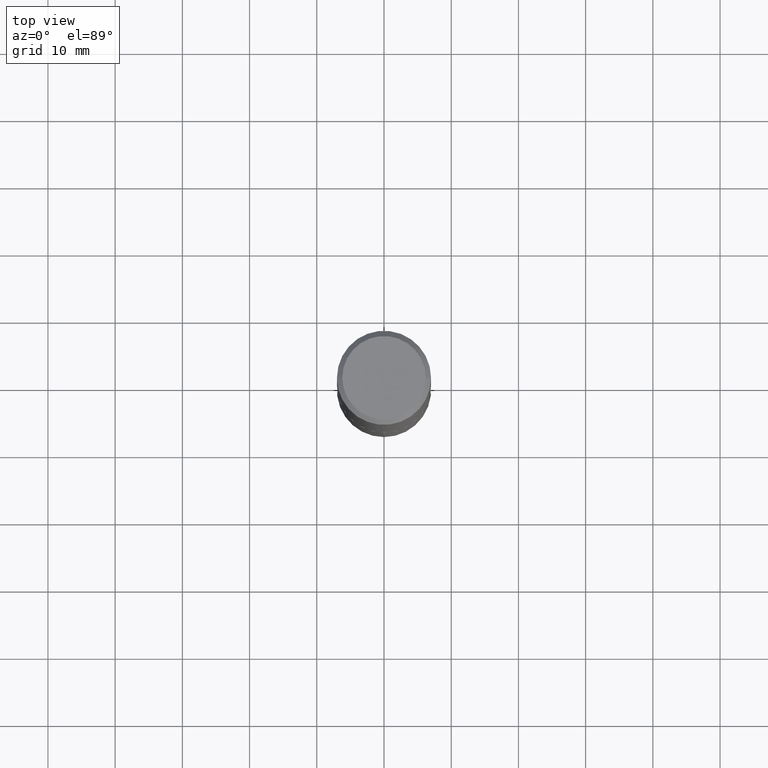
[diagram: clean part render]
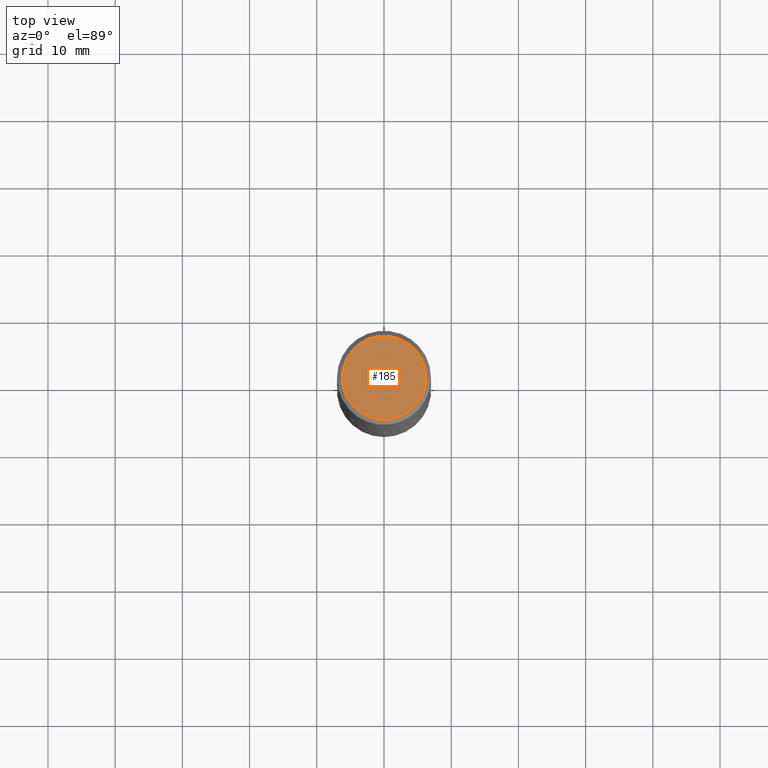
[diagram: same view with one face highlighted and labeled with its STEP entity id]
A machine part, top view. The second image highlights one B-rep face of the part: STEP entity #185.
In plain terms, the highlighted planar face has unit normal (0, -0, -1).
Its self-contained STEP definition (entity closure, byte-faithful):
#9 = EDGE_CURVE ( 'NONE', #26, #253, #311, .T. ) ;
#26 = VERTEX_POINT ( 'NONE', #240 ) ;
#78 = ORIENTED_EDGE ( 'NONE', *, *, #9, .T. ) ;
#103 = FACE_OUTER_BOUND ( 'NONE', #273, .T. ) ;
#128 = AXIS2_PLACEMENT_3D ( 'NONE', #220, #226, #367 ) ;
#142 = CARTESIAN_POINT ( 'NONE',  ( -5.300858916259507926E-47, 7.568221659237642966E-33, 2.167624834490815307E-18 ) ) ;
#153 = DIRECTION ( 'NONE',  ( 1.000000000000000000, -6.982962677686266711E-15, 4.876118653798672988E-29 ) ) ;
#185 = ADVANCED_FACE ( 'NONE', ( #103 ), #338, .F. ) ;
#187 = CIRCLE ( 'NONE', #320, 0.2443500000000000116 ) ;
#189 = CARTESIAN_POINT ( 'NONE',  ( 0.2443500000000000116, -1.838112362890078477E-15, 2.167624834503208667E-18 ) ) ;
#194 = DIRECTION ( 'NONE',  ( 1.000000000000000000, -6.982962677686266711E-15, 4.876118653798672988E-29 ) ) ;
#220 = CARTESIAN_POINT ( 'NONE',  ( -2.650429458129753963E-47, 3.784110829618821483E-33, 1.083812417245407654E-18 ) ) ;
#226 = DIRECTION ( 'NONE',  ( 2.438088387897960049E-29, -3.491481338843145188E-15, -1.000000000000000000 ) ) ;
#240 = CARTESIAN_POINT ( 'NONE',  ( -0.2443500000000000116, 1.760841326212062881E-15, 2.167624834478691964E-18 ) ) ;
#243 = ORIENTED_EDGE ( 'NONE', *, *, #324, .T. ) ;
#253 = VERTEX_POINT ( 'NONE', #189 ) ;
#273 = EDGE_LOOP ( 'NONE', ( #78, #243 ) ) ;
#303 = DIRECTION ( 'NONE',  ( -2.445468806185136597E-29, 3.491481338843145583E-15, 1.000000000000000000 ) ) ;
#311 = CIRCLE ( 'NONE', #388, 0.2443500000000000116 ) ;
#320 = AXIS2_PLACEMENT_3D ( 'NONE', #142, #377, #194 ) ;
#324 = EDGE_CURVE ( 'NONE', #253, #26, #187, .T. ) ;
#338 = PLANE ( 'NONE',  #128 ) ;
#367 = DIRECTION ( 'NONE',  ( -1.000000000000000000, 6.982962677686265922E-15, -4.876176775795935793E-29 ) ) ;
#377 = DIRECTION ( 'NONE',  ( -2.445468806185136597E-29, 3.491481338843145583E-15, 1.000000000000000000 ) ) ;
#388 = AXIS2_PLACEMENT_3D ( 'NONE', #390, #303, #153 ) ;
#390 = CARTESIAN_POINT ( 'NONE',  ( -5.300858916259507926E-47, 7.568221659237642966E-33, 2.167624834490815307E-18 ) ) ;